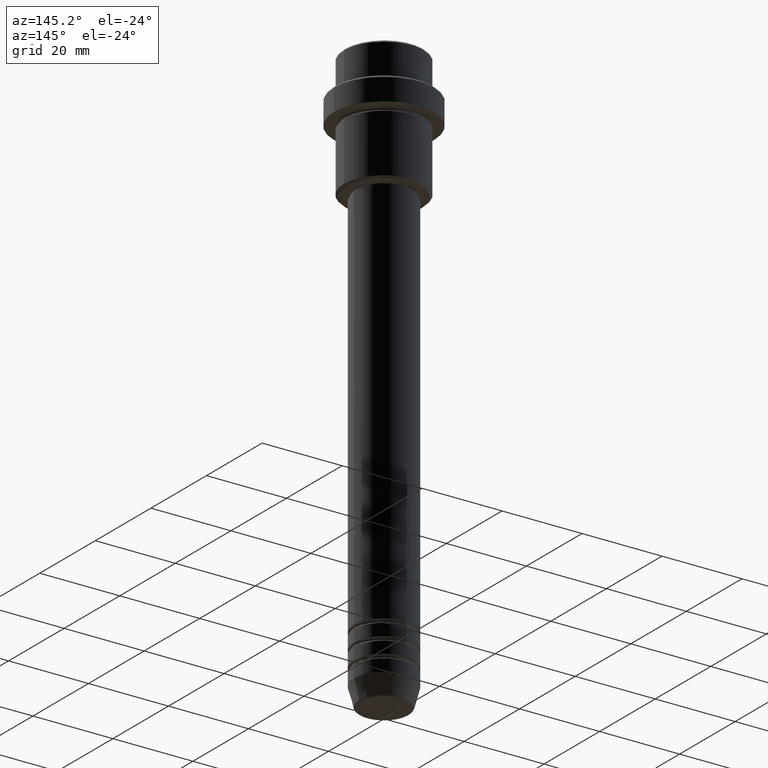
[diagram: clean part render]
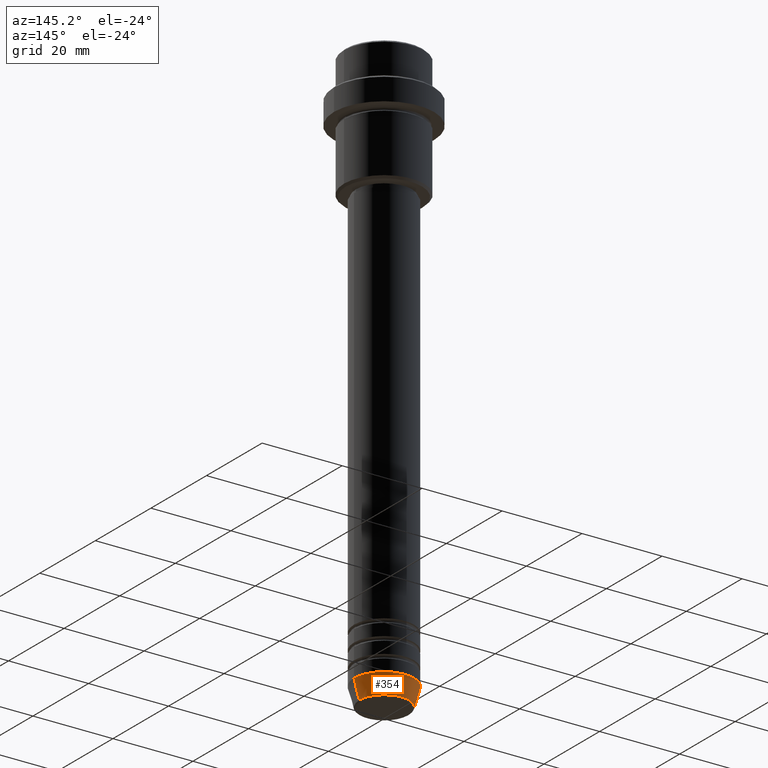
[diagram: same view with one face highlighted and labeled with its STEP entity id]
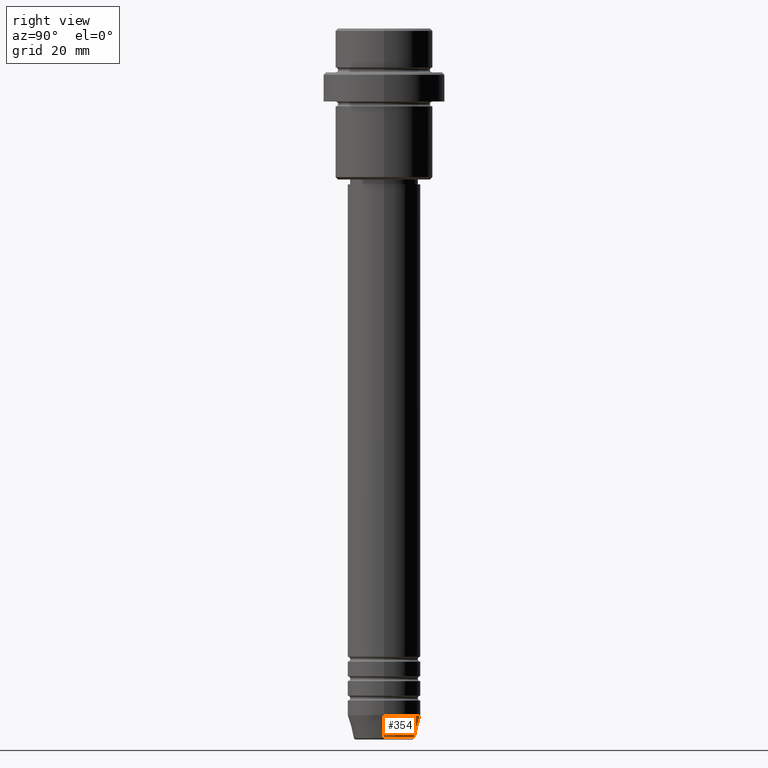
[diagram: same view with one face highlighted and labeled with its STEP entity id]
A machine part, auxiliary view. The second image highlights one B-rep face of the part: STEP entity #354.
A second angle (right view) of the same face is appended — the face is thin or edge-on in the first view.
In plain terms, the highlighted conical surface has half-angle 15 deg.
Its self-contained STEP definition (entity closure, byte-faithful):
#70 = CONICAL_SURFACE ( 'NONE', #736, 7.500000000000000000, 0.2617993877991514617 ) ;
#113 = LINE ( 'NONE', #790, #461 ) ;
#201 = CARTESIAN_POINT ( 'NONE',  ( 0.000000000000000000, 0.000000000000000000, -141.0000000000000000 ) ) ;
#249 = EDGE_CURVE ( 'NONE', #515, #828, #1047, .T. ) ;
#258 = CIRCLE ( 'NONE', #929, 6.259553456999435106 ) ;
#259 = ORIENTED_EDGE ( 'NONE', *, *, #249, .T. ) ;
#309 = CARTESIAN_POINT ( 'NONE',  ( 0.000000000000000000, 0.000000000000000000, -145.6294095225512422 ) ) ;
#354 = ADVANCED_FACE ( 'NONE', ( #1356 ), #70, .T. ) ;
#372 = CIRCLE ( 'NONE', #1360, 7.500000000000000000 ) ;
#461 = VECTOR ( 'NONE', #1216, 1000.000000000000114 ) ;
#512 = CARTESIAN_POINT ( 'NONE',  ( 6.259553456999435106, 0.000000000000000000, -145.6294095225512422 ) ) ;
#515 = VERTEX_POINT ( 'NONE', #551 ) ;
#525 = EDGE_CURVE ( 'NONE', #985, #1243, #113, .T. ) ;
#540 = DIRECTION ( 'NONE',  ( 1.000000000000000000, 0.000000000000000000, 0.000000000000000000 ) ) ;
#549 = CARTESIAN_POINT ( 'NONE',  ( -7.500000000000000000, 9.184850993605147944E-16, -141.0000000000000000 ) ) ;
#551 = CARTESIAN_POINT ( 'NONE',  ( -6.259553456999435106, 8.425296549405626528E-16, -145.6294095225512422 ) ) ;
#640 = DIRECTION ( 'NONE',  ( -0.000000000000000000, -0.000000000000000000, 1.000000000000000000 ) ) ;
#649 = DIRECTION ( 'NONE',  ( 1.000000000000000000, 0.000000000000000000, 0.000000000000000000 ) ) ;
#697 = DIRECTION ( 'NONE',  ( -0.2588190451025227379, 3.169619151431788361E-17, 0.9659258262890676461 ) ) ;
#720 = CARTESIAN_POINT ( 'NONE',  ( -7.500000000000000000, 9.184850993605147944E-16, -141.0000000000000000 ) ) ;
#736 = AXIS2_PLACEMENT_3D ( 'NONE', #201, #1417, #540 ) ;
#774 = CARTESIAN_POINT ( 'NONE',  ( 7.500000000000000000, 0.000000000000000000, -141.0000000000000000 ) ) ;
#777 = EDGE_LOOP ( 'NONE', ( #1397, #259, #886, #853 ) ) ;
#783 = VECTOR ( 'NONE', #697, 1000.000000000000114 ) ;
#790 = CARTESIAN_POINT ( 'NONE',  ( 7.500000000000000000, 0.000000000000000000, -141.0000000000000000 ) ) ;
#828 = VERTEX_POINT ( 'NONE', #549 ) ;
#853 = ORIENTED_EDGE ( 'NONE', *, *, #525, .F. ) ;
#886 = ORIENTED_EDGE ( 'NONE', *, *, #1351, .F. ) ;
#895 = CARTESIAN_POINT ( 'NONE',  ( 0.000000000000000000, 0.000000000000000000, -141.0000000000000000 ) ) ;
#929 = AXIS2_PLACEMENT_3D ( 'NONE', #309, #640, #1194 ) ;
#985 = VERTEX_POINT ( 'NONE', #512 ) ;
#988 = DIRECTION ( 'NONE',  ( -0.000000000000000000, -0.000000000000000000, 1.000000000000000000 ) ) ;
#1047 = LINE ( 'NONE', #720, #783 ) ;
#1103 = EDGE_CURVE ( 'NONE', #985, #515, #258, .T. ) ;
#1194 = DIRECTION ( 'NONE',  ( 1.000000000000000000, 0.000000000000000000, 0.000000000000000000 ) ) ;
#1216 = DIRECTION ( 'NONE',  ( 0.2588190451025227379, 0.000000000000000000, 0.9659258262890676461 ) ) ;
#1243 = VERTEX_POINT ( 'NONE', #774 ) ;
#1351 = EDGE_CURVE ( 'NONE', #1243, #828, #372, .T. ) ;
#1356 = FACE_OUTER_BOUND ( 'NONE', #777, .T. ) ;
#1360 = AXIS2_PLACEMENT_3D ( 'NONE', #895, #988, #649 ) ;
#1397 = ORIENTED_EDGE ( 'NONE', *, *, #1103, .T. ) ;
#1417 = DIRECTION ( 'NONE',  ( -0.000000000000000000, -0.000000000000000000, 1.000000000000000000 ) ) ;